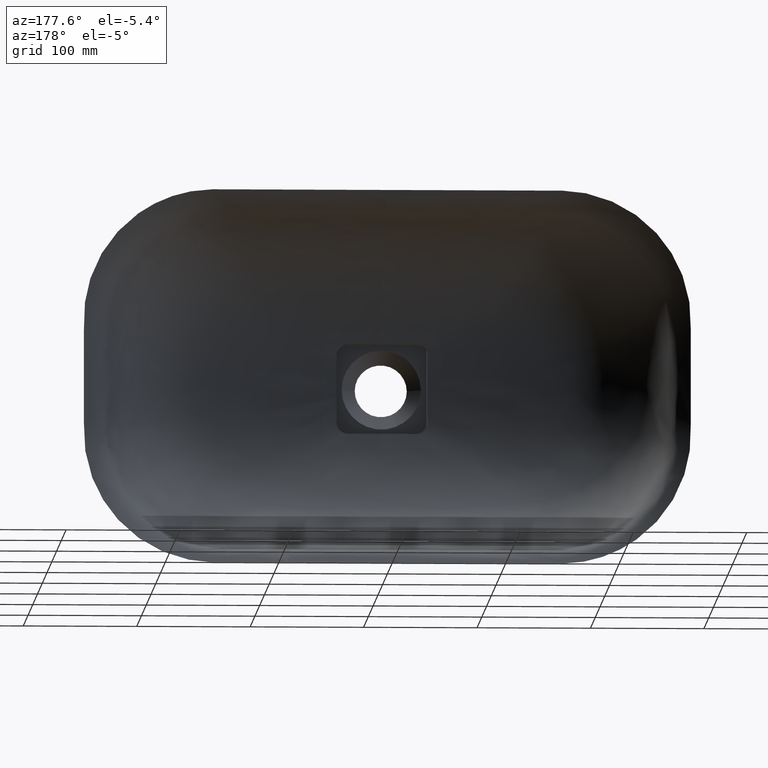
[diagram: clean part render]
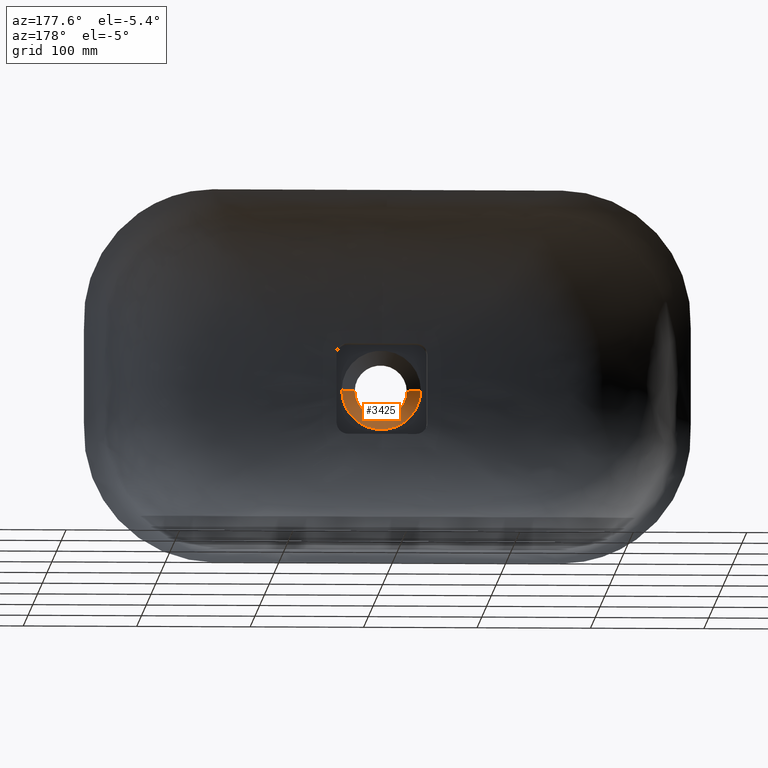
[diagram: same view with one face highlighted and labeled with its STEP entity id]
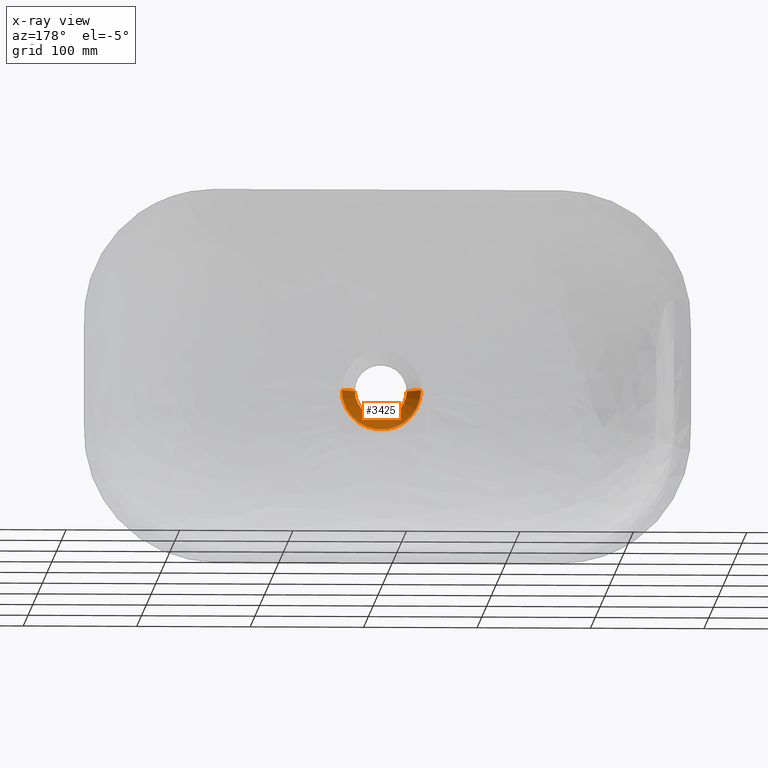
[diagram: x-ray of the same camera — body ghosted, the highlighted face saturated]
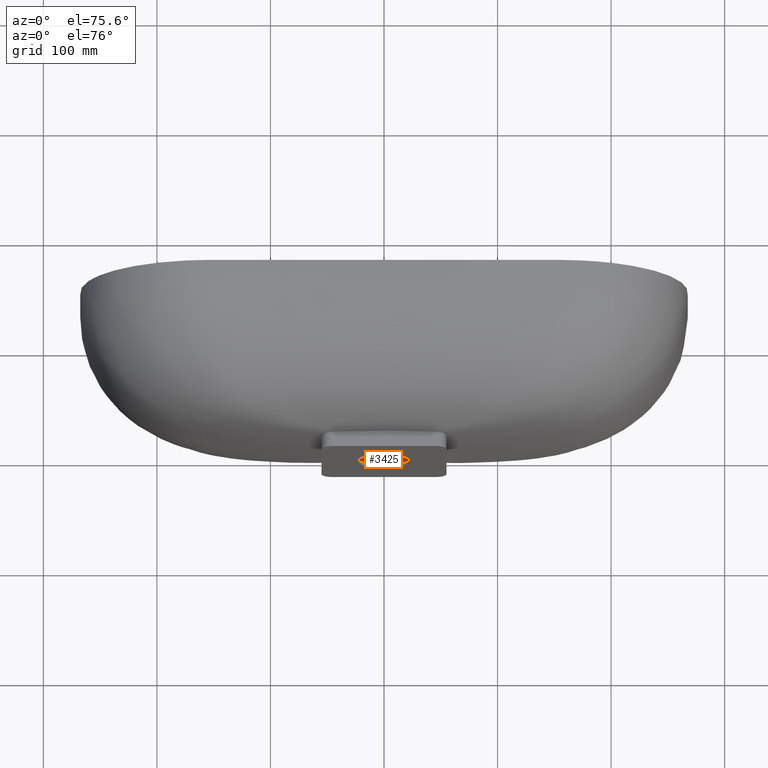
[diagram: same view with one face highlighted and labeled with its STEP entity id]
A machine part, auxiliary view. The second image highlights one B-rep face of the part: STEP entity #3425.
The next image is the same camera in x-ray: the body ghosted, the highlighted face saturated — about 0% of this face is hidden behind the body in this view.
A second angle (auxiliary view) of the same face is appended — the face is thin or edge-on in the first view.
In plain terms, the highlighted conical surface has half-angle 50 deg.
Its self-contained STEP definition (entity closure, byte-faithful):
#309 = CARTESIAN_POINT ( 'NONE',  ( -34.91753592593916977, -128.0000000000000000, -1.298097888654808995E-13 ) ) ;
#391 = EDGE_CURVE ( 'NONE', #1575, #3899, #4657, .T. ) ;
#444 = CONICAL_SURFACE ( 'NONE', #4968, 34.91753592594150035, 0.8726646259971490016 ) ;
#556 = CIRCLE ( 'NONE', #3334, 22.99999999999640110 ) ;
#660 = EDGE_CURVE ( 'NONE', #3899, #3272, #5474, .T. ) ;
#860 = DIRECTION ( 'NONE',  ( -2.867289048822923554E-14, 1.000000000000000000, -9.100188726435698743E-16 ) ) ;
#1455 = CARTESIAN_POINT ( 'NONE',  ( 34.91753592594383804, -128.0000000000000000, -1.255336240048975263E-13 ) ) ;
#1575 = VERTEX_POINT ( 'NONE', #6341 ) ;
#1661 = DIRECTION ( 'NONE',  ( -0.7660444431189863401, 0.6427876096865294819, -5.849488559162105455E-16 ) ) ;
#1732 = DIRECTION ( 'NONE',  ( 0.0000000000000000000, 0.0000000000000000000, -1.000000000000000000 ) ) ;
#1835 = DIRECTION ( 'NONE',  ( -2.867289048822923554E-14, 1.000000000000000000, -9.100188726435698743E-16 ) ) ;
#1954 = DIRECTION ( 'NONE',  ( 0.7660444431189494807, 0.6427876096865733357, -4.911354683891843470E-16 ) ) ;
#2080 = AXIS2_PLACEMENT_3D ( 'NONE', #4729, #7138, #1732 ) ;
#2735 = ORIENTED_EDGE ( 'NONE', *, *, #660, .F. ) ;
#3267 = DIRECTION ( 'NONE',  ( -1.000000000000000000, -2.861601472343008088E-14, 0.0000000000000000000 ) ) ;
#3272 = VERTEX_POINT ( 'NONE', #1455 ) ;
#3334 = AXIS2_PLACEMENT_3D ( 'NONE', #7237, #1835, #4237 ) ;
#3425 = ADVANCED_FACE ( 'NONE', ( #3855 ), #444, .F. ) ;
#3855 = FACE_OUTER_BOUND ( 'NONE', #5219, .T. ) ;
#3899 = VERTEX_POINT ( 'NONE', #309 ) ;
#4190 = ORIENTED_EDGE ( 'NONE', *, *, #4268, .F. ) ;
#4237 = DIRECTION ( 'NONE',  ( 1.000000000000000000, 2.896233977283470266E-14, 0.0000000000000000000 ) ) ;
#4268 = EDGE_CURVE ( 'NONE', #4272, #1575, #556, .T. ) ;
#4272 = VERTEX_POINT ( 'NONE', #6645 ) ;
#4649 = EDGE_CURVE ( 'NONE', #4272, #3272, #4950, .T. ) ;
#4657 = LINE ( 'NONE', #7064, #5732 ) ;
#4729 = CARTESIAN_POINT ( 'NONE',  ( 3.526765530052195996E-12, -128.0000000000000000, -1.298097888654799908E-13 ) ) ;
#4950 = LINE ( 'NONE', #7354, #7617 ) ;
#4968 = AXIS2_PLACEMENT_3D ( 'NONE', #6264, #860, #3267 ) ;
#5219 = EDGE_LOOP ( 'NONE', ( #4190, #6052, #2735, #6015 ) ) ;
#5474 = CIRCLE ( 'NONE', #2080, 34.91753592594153588 ) ;
#5732 = VECTOR ( 'NONE', #1661, 1000.000000000000000 ) ;
#6015 = ORIENTED_EDGE ( 'NONE', *, *, #391, .F. ) ;
#6052 = ORIENTED_EDGE ( 'NONE', *, *, #4649, .T. ) ;
#6264 = CARTESIAN_POINT ( 'NONE',  ( 3.526765530052195996E-12, -128.0000000000000000, -1.298097888654799908E-13 ) ) ;
#6341 = CARTESIAN_POINT ( 'NONE',  ( -22.99999999999258904, -138.0000000000034959, -1.193445718300770984E-13 ) ) ;
#6645 = CARTESIAN_POINT ( 'NONE',  ( 23.00000000000021316, -138.0000000000021885, -1.165278841920392250E-13 ) ) ;
#7064 = CARTESIAN_POINT ( 'NONE',  ( -34.91753592593797606, -128.0000000000009948, -1.298097888654799908E-13 ) ) ;
#7138 = DIRECTION ( 'NONE',  ( -0.0000000000000000000, -1.000000000000000000, 0.0000000000000000000 ) ) ;
#7237 = CARTESIAN_POINT ( 'NONE',  ( 3.813494434934569484E-12, -138.0000000000028422, -1.207096001390417140E-13 ) ) ;
#7354 = CARTESIAN_POINT ( 'NONE',  ( 34.91753592594503175, -127.9999999999990052, -1.255336240048982836E-13 ) ) ;
#7617 = VECTOR ( 'NONE', #1954, 1000.000000000000114 ) ;